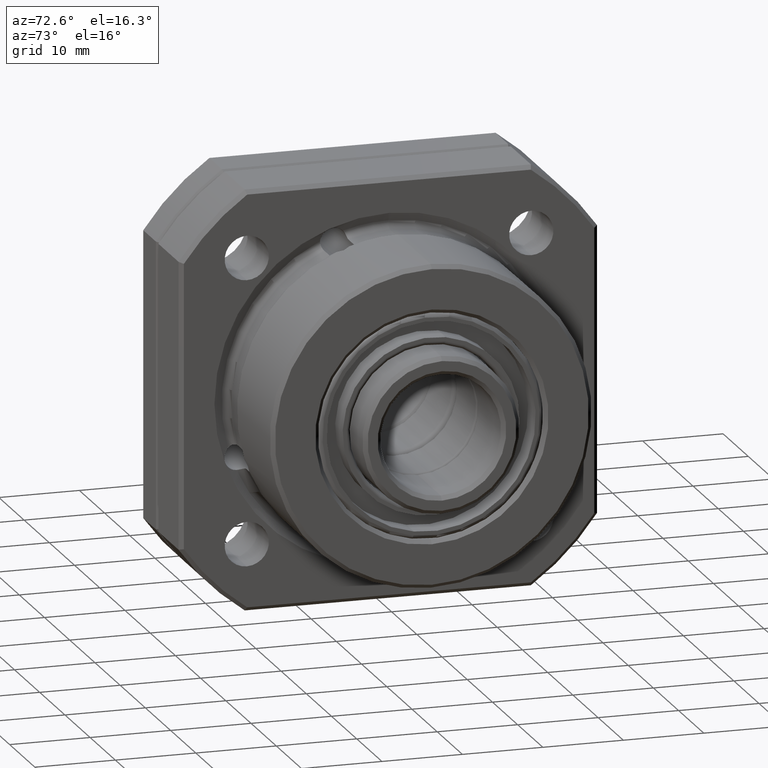
[diagram: clean part render]
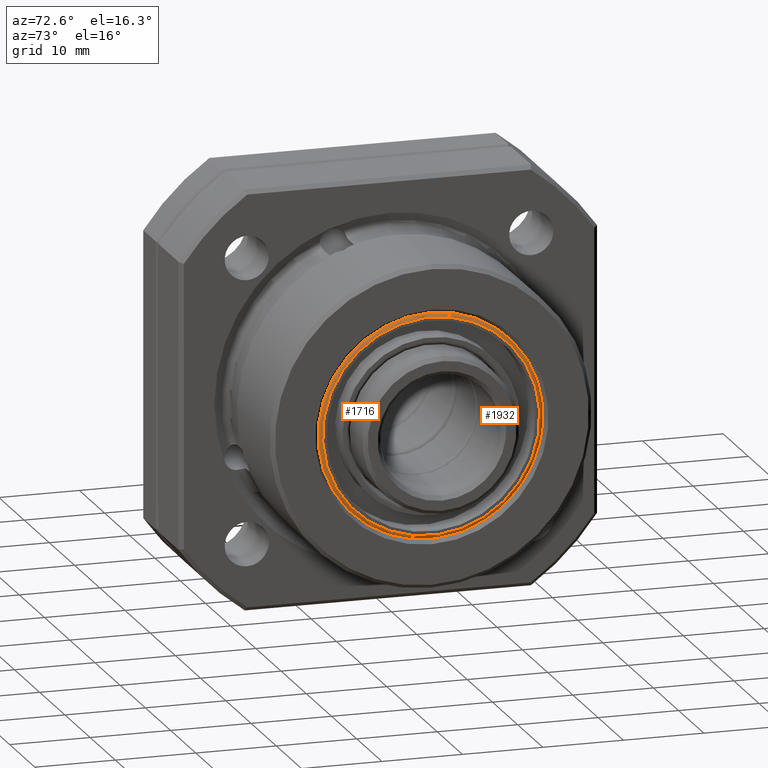
[diagram: same view with one multi-face feature highlighted, each face labeled with its STEP entity id]
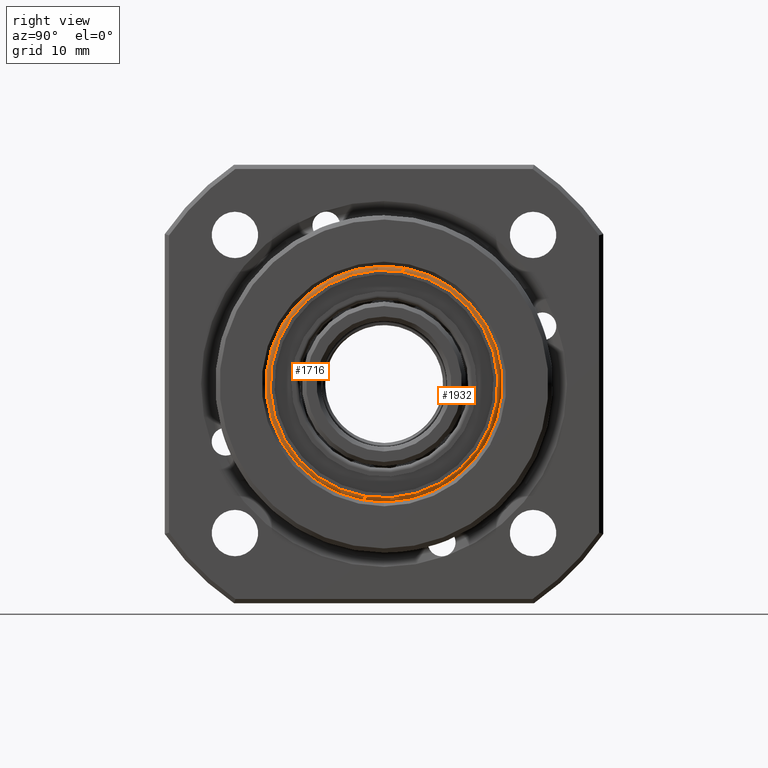
[diagram: same view with one multi-face feature highlighted, each face labeled with its STEP entity id]
A machine part, auxiliary view. The highlighted faces form ONE feature: a constant-radius fillet chain: 2 tangent blend faces with common blend radius 0.5 mm. The faces share edges in the B-rep.
A second angle (right view) of the same feature is appended — it is thin or edge-on in the first view.
Their STEP definitions:
[1] entity #1716 (Torus):
#242 = VERTEX_POINT ( 'NONE', #3188 ) ;
#1699 = ORIENTED_EDGE ( 'NONE', *, *, #1700, .F. ) ;
#1700 = EDGE_CURVE ( 'NONE', #1772, #242, #5723, .T. ) ;
#1716 = ADVANCED_FACE ( 'NONE', ( #5771 ), #5766, .T. ) ;
#1717 = EDGE_LOOP ( 'NONE', ( #1718, #1773, #1776, #1699 ) ) ;
#1718 = ORIENTED_EDGE ( 'NONE', *, *, #1719, .F. ) ;
#1719 = EDGE_CURVE ( 'NONE', #1720, #1772, #5765, .T. ) ;
#1720 = VERTEX_POINT ( 'NONE', #5756 ) ;
#1772 = VERTEX_POINT ( 'NONE', #5848 ) ;
#1773 = ORIENTED_EDGE ( 'NONE', *, *, #1774, .T. ) ;
#1774 = EDGE_CURVE ( 'NONE', #1720, #1775, #5847, .T. ) ;
#1775 = VERTEX_POINT ( 'NONE', #5906 ) ;
#1776 = ORIENTED_EDGE ( 'NONE', *, *, #1777, .F. ) ;
#1777 = EDGE_CURVE ( 'NONE', #242, #1775, #5905, .T. ) ;
#3188 = CARTESIAN_POINT ( 'NONE',  ( 25.19999999999999900, -2.304566287275058700, -13.80901785890491800 ) ) ;
#5720 = DIRECTION ( 'NONE',  ( 0.0000000000000000000, 0.1646118776625046800, 0.9863584184932091500 ) ) ;
#5721 = DIRECTION ( 'NONE',  ( -5.408790776650285100E-031, 0.9863584184932091500, -0.1646118776625042100 ) ) ;
#5722 = AXIS2_PLACEMENT_3D ( 'NONE', #5728, #5721, #5720 ) ;
#5723 = CIRCLE ( 'NONE', #5722, 0.4999999999999996700 ) ;
#5728 = CARTESIAN_POINT ( 'NONE',  ( 25.19999999999999900, -2.222260348443805300, -13.31583864965831400 ) ) ;
#5756 = CARTESIAN_POINT ( 'NONE',  ( 25.69999999999999600, 2.222260348443803500, 13.31583864965831400 ) ) ;
#5757 = DIRECTION ( 'NONE',  ( 0.0000000000000000000, -0.1646118776625042100, -0.9863584184932091500 ) ) ;
#5758 = DIRECTION ( 'NONE',  ( 1.000000000000000000, 6.342559012128108500E-031, 5.146929321159403700E-031 ) ) ;
#5759 = CARTESIAN_POINT ( 'NONE',  ( 25.69999999999999200, 8.185202263645752400E-029, 5.238529448733281500E-029 ) ) ;
#5760 = AXIS2_PLACEMENT_3D ( 'NONE', #5759, #5758, #5757 ) ;
#5761 = DIRECTION ( 'NONE',  ( 6.120777613486761900E-031, -0.1646118776625042100, -0.9863584184932092700 ) ) ;
#5762 = DIRECTION ( 'NONE',  ( -1.000000000000000000, -6.342559012128108500E-031, -5.146929321159403700E-031 ) ) ;
#5763 = CARTESIAN_POINT ( 'NONE',  ( 25.19999999999999900, 8.320017359752858900E-029, 5.238529448733281500E-029 ) ) ;
#5764 = AXIS2_PLACEMENT_3D ( 'NONE', #5763, #5762, #5761 ) ;
#5765 = CIRCLE ( 'NONE', #5760, 13.49999999999999100 ) ;
#5766 = TOROIDAL_SURFACE ( 'NONE', #5764, 13.49999999999998900, 0.5000000000000000000 ) ;
#5771 = FACE_OUTER_BOUND ( 'NONE', #1717, .T. ) ;
#5847 = CIRCLE ( 'NONE', #5910, 0.4999999999999996100 ) ;
#5848 = CARTESIAN_POINT ( 'NONE',  ( 25.69999999999999600, -2.222260348443805300, -13.31583864965831400 ) ) ;
#5901 = DIRECTION ( 'NONE',  ( 0.0000000000000000000, -0.1646118776625042100, -0.9863584184932091500 ) ) ;
#5902 = DIRECTION ( 'NONE',  ( -1.000000000000000000, -6.342559012128108500E-031, -5.146929321159403700E-031 ) ) ;
#5903 = CARTESIAN_POINT ( 'NONE',  ( 25.19999999999999900, 8.320017359752858900E-029, 5.238529448733281500E-029 ) ) ;
#5904 = AXIS2_PLACEMENT_3D ( 'NONE', #5903, #5902, #5901 ) ;
#5905 = CIRCLE ( 'NONE', #5904, 13.99999999999998900 ) ;
#5906 = CARTESIAN_POINT ( 'NONE',  ( 25.19999999999999900, 2.304566287275057400, 13.80901785890492100 ) ) ;
#5907 = DIRECTION ( 'NONE',  ( 0.0000000000000000000, -0.1646118776625038500, -0.9863584184932092700 ) ) ;
#5908 = DIRECTION ( 'NONE',  ( 5.408790776650286000E-031, -0.9863584184932091500, 0.1646118776625041000 ) ) ;
#5909 = CARTESIAN_POINT ( 'NONE',  ( 25.19999999999999900, 2.222260348443803500, 13.31583864965831400 ) ) ;
#5910 = AXIS2_PLACEMENT_3D ( 'NONE', #5909, #5908, #5907 ) ;
[2] entity #1932 (Torus):
#242 = VERTEX_POINT ( 'NONE', #3188 ) ;
#1700 = EDGE_CURVE ( 'NONE', #1772, #242, #5723, .T. ) ;
#1720 = VERTEX_POINT ( 'NONE', #5756 ) ;
#1772 = VERTEX_POINT ( 'NONE', #5848 ) ;
#1774 = EDGE_CURVE ( 'NONE', #1720, #1775, #5847, .T. ) ;
#1775 = VERTEX_POINT ( 'NONE', #5906 ) ;
#1778 = EDGE_CURVE ( 'NONE', #1772, #1720, #5900, .T. ) ;
#1856 = EDGE_LOOP ( 'NONE', ( #1908, #1909, #1910, #1911 ) ) ;
#1862 = EDGE_CURVE ( 'NONE', #1775, #242, #6065, .T. ) ;
#1908 = ORIENTED_EDGE ( 'NONE', *, *, #1774, .F. ) ;
#1909 = ORIENTED_EDGE ( 'NONE', *, *, #1778, .F. ) ;
#1910 = ORIENTED_EDGE ( 'NONE', *, *, #1700, .T. ) ;
#1911 = ORIENTED_EDGE ( 'NONE', *, *, #1862, .F. ) ;
#1932 = ADVANCED_FACE ( 'NONE', ( #6297 ), #6292, .T. ) ;
#3188 = CARTESIAN_POINT ( 'NONE',  ( 25.19999999999999900, -2.304566287275058700, -13.80901785890491800 ) ) ;
#5720 = DIRECTION ( 'NONE',  ( 0.0000000000000000000, 0.1646118776625046800, 0.9863584184932091500 ) ) ;
#5721 = DIRECTION ( 'NONE',  ( -5.408790776650285100E-031, 0.9863584184932091500, -0.1646118776625042100 ) ) ;
#5722 = AXIS2_PLACEMENT_3D ( 'NONE', #5728, #5721, #5720 ) ;
#5723 = CIRCLE ( 'NONE', #5722, 0.4999999999999996700 ) ;
#5728 = CARTESIAN_POINT ( 'NONE',  ( 25.19999999999999900, -2.222260348443805300, -13.31583864965831400 ) ) ;
#5756 = CARTESIAN_POINT ( 'NONE',  ( 25.69999999999999600, 2.222260348443803500, 13.31583864965831400 ) ) ;
#5847 = CIRCLE ( 'NONE', #5910, 0.4999999999999996100 ) ;
#5848 = CARTESIAN_POINT ( 'NONE',  ( 25.69999999999999600, -2.222260348443805300, -13.31583864965831400 ) ) ;
#5896 = DIRECTION ( 'NONE',  ( 0.0000000000000000000, -0.1646118776625042100, -0.9863584184932091500 ) ) ;
#5897 = DIRECTION ( 'NONE',  ( 1.000000000000000000, 6.342559012128108500E-031, 5.146929321159403700E-031 ) ) ;
#5898 = CARTESIAN_POINT ( 'NONE',  ( 25.69999999999999200, 8.185202263645752400E-029, 5.238529448733281500E-029 ) ) ;
#5899 = AXIS2_PLACEMENT_3D ( 'NONE', #5898, #5897, #5896 ) ;
#5900 = CIRCLE ( 'NONE', #5899, 13.49999999999999100 ) ;
#5906 = CARTESIAN_POINT ( 'NONE',  ( 25.19999999999999900, 2.304566287275057400, 13.80901785890492100 ) ) ;
#5907 = DIRECTION ( 'NONE',  ( 0.0000000000000000000, -0.1646118776625038500, -0.9863584184932092700 ) ) ;
#5908 = DIRECTION ( 'NONE',  ( 5.408790776650286000E-031, -0.9863584184932091500, 0.1646118776625041000 ) ) ;
#5909 = CARTESIAN_POINT ( 'NONE',  ( 25.19999999999999900, 2.222260348443803500, 13.31583864965831400 ) ) ;
#5910 = AXIS2_PLACEMENT_3D ( 'NONE', #5909, #5908, #5907 ) ;
#6061 = DIRECTION ( 'NONE',  ( 0.0000000000000000000, -0.1646118776625042100, -0.9863584184932091500 ) ) ;
#6062 = DIRECTION ( 'NONE',  ( -1.000000000000000000, -6.342559012128108500E-031, -5.146929321159403700E-031 ) ) ;
#6063 = CARTESIAN_POINT ( 'NONE',  ( 25.19999999999999900, 8.320017359752858900E-029, 5.238529448733281500E-029 ) ) ;
#6064 = AXIS2_PLACEMENT_3D ( 'NONE', #6063, #6062, #6061 ) ;
#6065 = CIRCLE ( 'NONE', #6064, 13.99999999999998900 ) ;
#6287 = DIRECTION ( 'NONE',  ( 6.120777613486761900E-031, -0.1646118776625042100, -0.9863584184932092700 ) ) ;
#6288 = DIRECTION ( 'NONE',  ( -1.000000000000000000, -6.342559012128108500E-031, -5.146929321159403700E-031 ) ) ;
#6289 = CARTESIAN_POINT ( 'NONE',  ( 25.19999999999999900, 8.320017359752858900E-029, 5.238529448733281500E-029 ) ) ;
#6290 = AXIS2_PLACEMENT_3D ( 'NONE', #6289, #6288, #6287 ) ;
#6292 = TOROIDAL_SURFACE ( 'NONE', #6290, 13.49999999999998900, 0.5000000000000000000 ) ;
#6297 = FACE_OUTER_BOUND ( 'NONE', #1856, .T. ) ;